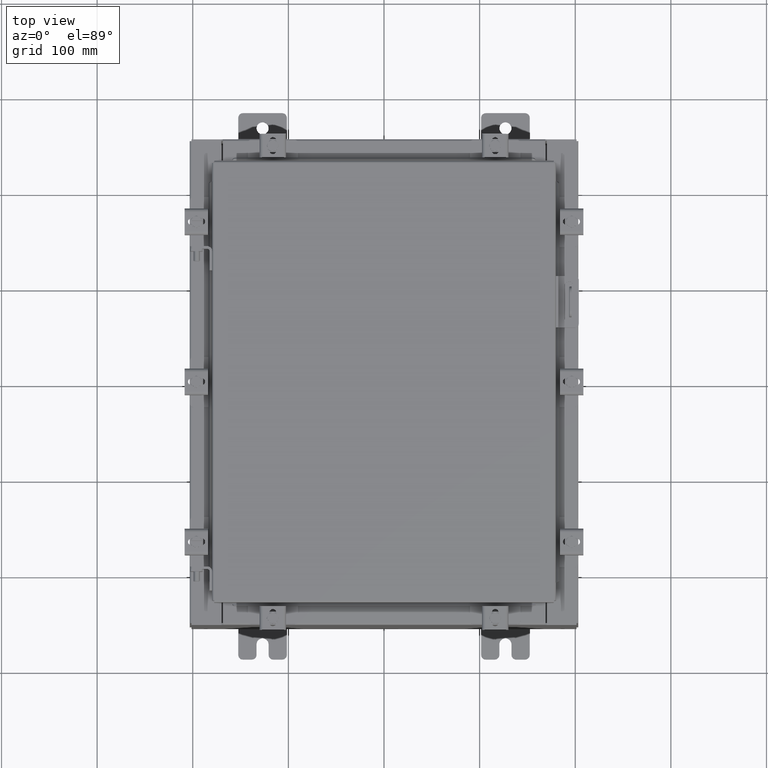
[diagram: clean part render]
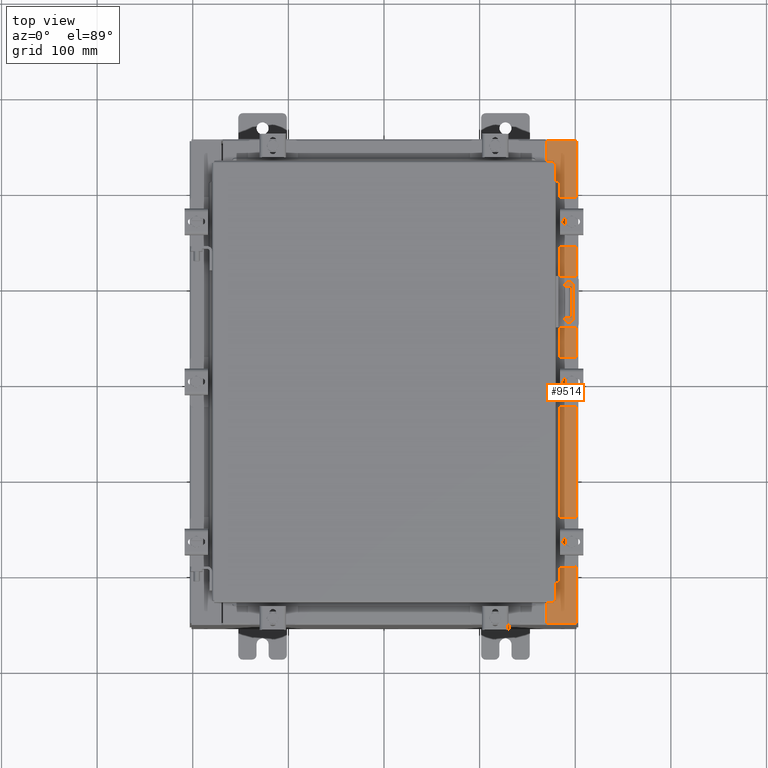
[diagram: same view with one face highlighted and labeled with its STEP entity id]
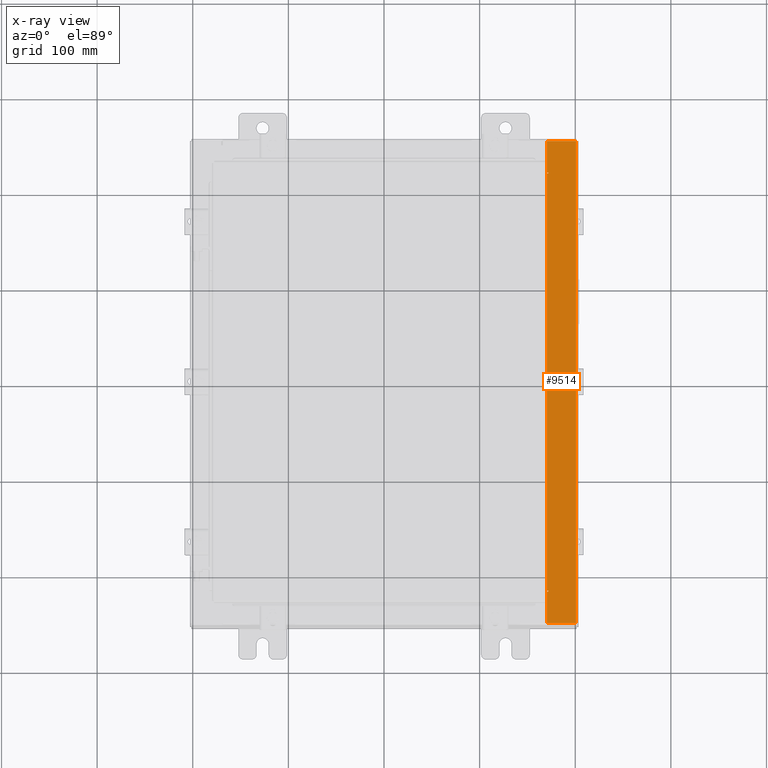
[diagram: x-ray of the same camera — body ghosted, the highlighted face saturated]
A machine part, top view. The second image highlights one B-rep face of the part: STEP entity #9514.
The next image is the same camera in x-ray: the body ghosted, the highlighted face saturated — about 0% of this face is hidden behind the body in this view.
In plain terms, the highlighted planar face has unit normal (-0, 0, -1).
Its self-contained STEP definition (entity closure, byte-faithful):
#389 = VERTEX_POINT ( 'NONE', #14217 ) ;
#662 = ORIENTED_EDGE ( 'NONE', *, *, #10923, .F. ) ;
#811 = ORIENTED_EDGE ( 'NONE', *, *, #20695, .F. ) ;
#879 = AXIS2_PLACEMENT_3D ( 'NONE', #5244, #17424, #6981 ) ;
#1155 = VERTEX_POINT ( 'NONE', #7098 ) ;
#2318 = EDGE_CURVE ( 'NONE', #7923, #10468, #4370, .T. ) ;
#2601 = DIRECTION ( 'NONE',  ( 1.000000000000000000, -1.783190596386598200E-015, -7.132762385546378400E-015 ) ) ;
#2880 = DIRECTION ( 'NONE',  ( -1.000000000000000000, 3.566381192773190000E-015, 7.132762385546378400E-015 ) ) ;
#2887 = CARTESIAN_POINT ( 'NONE',  ( 6.750050000000041600, -8.612425000000005300, 9.925300000000007100 ) ) ;
#3166 = CARTESIAN_POINT ( 'NONE',  ( 6.699700000000036400, 8.631099999999994700, 9.925300000000007100 ) ) ;
#3168 = ORIENTED_EDGE ( 'NONE', *, *, #2318, .F. ) ;
#4065 = CARTESIAN_POINT ( 'NONE',  ( 6.750050000000041600, 8.631099999999994700, 9.925300000000007100 ) ) ;
#4370 = LINE ( 'NONE', #15984, #21812 ) ;
#4413 = CARTESIAN_POINT ( 'NONE',  ( 6.712700000000041600, 8.593749999999994700, 9.925300000000007100 ) ) ;
#4497 = AXIS2_PLACEMENT_3D ( 'NONE', #4819, #8274, #20511 ) ;
#4597 = DIRECTION ( 'NONE',  ( 1.000000000000000000, 2.170286390199908100E-014, 0.0000000000000000000 ) ) ;
#4598 = DIRECTION ( 'NONE',  ( 1.000000000000000000, 0.0000000000000000000, 0.0000000000000000000 ) ) ;
#4819 = CARTESIAN_POINT ( 'NONE',  ( 7.105562016127543800E-014, -1.092739197465711600E-015, 9.925300000000055100 ) ) ;
#4992 = CARTESIAN_POINT ( 'NONE',  ( 7.912300000000036500, -9.925300000000005300, 9.925299999999998200 ) ) ;
#5117 = ORIENTED_EDGE ( 'NONE', *, *, #10348, .T. ) ;
#5244 = CARTESIAN_POINT ( 'NONE',  ( 6.750050000000041600, 8.612424999999992900, 9.925300000000007100 ) ) ;
#5634 = LINE ( 'NONE', #13331, #10205 ) ;
#6308 = VERTEX_POINT ( 'NONE', #7323 ) ;
#6866 = CARTESIAN_POINT ( 'NONE',  ( 6.712700000000041600, -8.593750000000005300, 9.925300000000007100 ) ) ;
#6884 = ORIENTED_EDGE ( 'NONE', *, *, #10783, .T. ) ;
#6896 = EDGE_CURVE ( 'NONE', #7923, #11250, #5634, .T. ) ;
#6981 = DIRECTION ( 'NONE',  ( 1.000000000000000000, 0.0000000000000000000, 0.0000000000000000000 ) ) ;
#7098 = CARTESIAN_POINT ( 'NONE',  ( 6.750050000000041600, 8.593749999999992900, 9.925300000000007100 ) ) ;
#7141 = CARTESIAN_POINT ( 'NONE',  ( 6.699700000000036400, 9.925299999999992900, 9.925300000000007100 ) ) ;
#7323 = CARTESIAN_POINT ( 'NONE',  ( 6.712700000000041600, -8.593750000000005300, 9.925300000000007100 ) ) ;
#7854 = CIRCLE ( 'NONE', #879, 0.01867499999999949400 ) ;
#7923 = VERTEX_POINT ( 'NONE', #21084 ) ;
#8274 = DIRECTION ( 'NONE',  ( -7.132762385546378400E-015, 1.100963394019027600E-016, -1.000000000000000000 ) ) ;
#9007 = ORIENTED_EDGE ( 'NONE', *, *, #19814, .F. ) ;
#9228 = LINE ( 'NONE', #16740, #13831 ) ;
#9312 = FACE_OUTER_BOUND ( 'NONE', #22258, .T. ) ;
#9514 = ADVANCED_FACE ( 'NONE', ( #9312 ), #18738, .F. ) ;
#9700 = LINE ( 'NONE', #6866, #14321 ) ;
#9938 = DIRECTION ( 'NONE',  ( 1.100963394019027800E-016, -1.000000000000000000, -1.100963394019035600E-016 ) ) ;
#10178 = VERTEX_POINT ( 'NONE', #11167 ) ;
#10205 = VECTOR ( 'NONE', #2880, 39.37007874015748100 ) ;
#10348 = EDGE_CURVE ( 'NONE', #10178, #389, #22120, .T. ) ;
#10468 = VERTEX_POINT ( 'NONE', #4992 ) ;
#10783 = EDGE_CURVE ( 'NONE', #389, #10468, #11390, .T. ) ;
#10790 = VERTEX_POINT ( 'NONE', #16429 ) ;
#10923 = EDGE_CURVE ( 'NONE', #10178, #12344, #9228, .T. ) ;
#11145 = CARTESIAN_POINT ( 'NONE',  ( 5.335691853495954000E-014, -9.925299999999991100, 9.925300000000055100 ) ) ;
#11167 = CARTESIAN_POINT ( 'NONE',  ( 6.699700000000039100, -8.631100000000005300, 9.925300000000007100 ) ) ;
#11250 = VERTEX_POINT ( 'NONE', #7141 ) ;
#11390 = LINE ( 'NONE', #11145, #16606 ) ;
#11625 = DIRECTION ( 'NONE',  ( -1.000000000000000000, 0.0000000000000000000, 0.0000000000000000000 ) ) ;
#12327 = ORIENTED_EDGE ( 'NONE', *, *, #20992, .F. ) ;
#12344 = VERTEX_POINT ( 'NONE', #18275 ) ;
#12428 = VECTOR ( 'NONE', #11625, 39.37007874015748100 ) ;
#12948 = VERTEX_POINT ( 'NONE', #16633 ) ;
#13305 = VECTOR ( 'NONE', #18601, 39.37007874015748100 ) ;
#13331 = CARTESIAN_POINT ( 'NONE',  ( 1.064530234139072600E-013, 9.925300000000019600, 9.925300000000055100 ) ) ;
#13800 = VERTEX_POINT ( 'NONE', #22119 ) ;
#13831 = VECTOR ( 'NONE', #4597, 39.37007874015748100 ) ;
#13989 = ORIENTED_EDGE ( 'NONE', *, *, #20524, .F. ) ;
#14034 = CIRCLE ( 'NONE', #16108, 0.01867499999999949400 ) ;
#14217 = CARTESIAN_POINT ( 'NONE',  ( 6.699700000000039100, -9.925300000000001800, 9.925300000000007100 ) ) ;
#14321 = VECTOR ( 'NONE', #18998, 39.37007874015748100 ) ;
#14378 = VECTOR ( 'NONE', #14409, 39.37007874015748100 ) ;
#14409 = DIRECTION ( 'NONE',  ( -1.000000000000000000, 2.170286390199814100E-014, 0.0000000000000000000 ) ) ;
#14628 = VECTOR ( 'NONE', #20021, 39.37007874015748100 ) ;
#14952 = DIRECTION ( 'NONE',  ( 7.132762385546378400E-015, -1.100963394019027700E-016, 1.000000000000000000 ) ) ;
#15110 = VERTEX_POINT ( 'NONE', #3166 ) ;
#15984 = CARTESIAN_POINT ( 'NONE',  ( 7.912300000000036500, -9.925300000000001800, 9.925299999999998200 ) ) ;
#16108 = AXIS2_PLACEMENT_3D ( 'NONE', #2887, #14952, #4598 ) ;
#16338 = VECTOR ( 'NONE', #9938, 39.37007874015748100 ) ;
#16429 = CARTESIAN_POINT ( 'NONE',  ( 6.712700000000041600, 8.593749999999994700, 9.925300000000007100 ) ) ;
#16606 = VECTOR ( 'NONE', #2601, 39.37007874015748100 ) ;
#16633 = CARTESIAN_POINT ( 'NONE',  ( 6.750050000000041600, -8.593750000000005300, 9.925300000000007100 ) ) ;
#16740 = CARTESIAN_POINT ( 'NONE',  ( 6.699700000000039100, -8.631100000000005300, 9.925300000000007100 ) ) ;
#16909 = LINE ( 'NONE', #20456, #16338 ) ;
#17424 = DIRECTION ( 'NONE',  ( 7.132762385546378400E-015, -1.100963394019027700E-016, 1.000000000000000000 ) ) ;
#17761 = ORIENTED_EDGE ( 'NONE', *, *, #6896, .T. ) ;
#18275 = CARTESIAN_POINT ( 'NONE',  ( 6.750050000000041600, -8.631100000000005300, 9.925300000000007100 ) ) ;
#18601 = DIRECTION ( 'NONE',  ( 1.100963394019027800E-016, -1.000000000000000000, -1.100963394019035600E-016 ) ) ;
#18738 = PLANE ( 'NONE',  #4497 ) ;
#18768 = EDGE_CURVE ( 'NONE', #11250, #15110, #16909, .T. ) ;
#18998 = DIRECTION ( 'NONE',  ( -0.0000000000000000000, 1.000000000000000000, -0.0000000000000000000 ) ) ;
#19080 = EDGE_CURVE ( 'NONE', #13800, #15110, #19652, .T. ) ;
#19341 = LINE ( 'NONE', #4413, #14628 ) ;
#19519 = EDGE_CURVE ( 'NONE', #1155, #13800, #7854, .T. ) ;
#19553 = DIRECTION ( 'NONE',  ( -0.0000000000000000000, -1.000000000000000000, -1.100963394019027800E-016 ) ) ;
#19554 = ORIENTED_EDGE ( 'NONE', *, *, #19519, .F. ) ;
#19652 = LINE ( 'NONE', #4065, #14378 ) ;
#19814 = EDGE_CURVE ( 'NONE', #10790, #1155, #19341, .T. ) ;
#20021 = DIRECTION ( 'NONE',  ( 1.000000000000000000, 0.0000000000000000000, 0.0000000000000000000 ) ) ;
#20295 = CARTESIAN_POINT ( 'NONE',  ( 6.699700000000038200, -3.551267523747818500E-016, 9.925300000000007100 ) ) ;
#20456 = CARTESIAN_POINT ( 'NONE',  ( 6.699700000000038200, -3.551267523747818500E-016, 9.925300000000007100 ) ) ;
#20511 = DIRECTION ( 'NONE',  ( -1.000000000000000000, 0.0000000000000000000, 7.132762385546378400E-015 ) ) ;
#20524 = EDGE_CURVE ( 'NONE', #12948, #6308, #21241, .T. ) ;
#20615 = ORIENTED_EDGE ( 'NONE', *, *, #18768, .T. ) ;
#20695 = EDGE_CURVE ( 'NONE', #6308, #10790, #9700, .T. ) ;
#20992 = EDGE_CURVE ( 'NONE', #12344, #12948, #14034, .T. ) ;
#21084 = CARTESIAN_POINT ( 'NONE',  ( 7.912300000000036500, 9.925299999999989400, 9.925299999999998200 ) ) ;
#21241 = LINE ( 'NONE', #22150, #12428 ) ;
#21812 = VECTOR ( 'NONE', #19553, 39.37007874015748100 ) ;
#22119 = CARTESIAN_POINT ( 'NONE',  ( 6.750050000000041600, 8.631099999999994700, 9.925300000000007100 ) ) ;
#22120 = LINE ( 'NONE', #20295, #13305 ) ;
#22150 = CARTESIAN_POINT ( 'NONE',  ( 6.750050000000041600, -8.593750000000005300, 9.925300000000007100 ) ) ;
#22258 = EDGE_LOOP ( 'NONE', ( #662, #5117, #6884, #3168, #17761, #20615, #22401, #19554, #9007, #811, #13989, #12327 ) ) ;
#22401 = ORIENTED_EDGE ( 'NONE', *, *, #19080, .F. ) ;